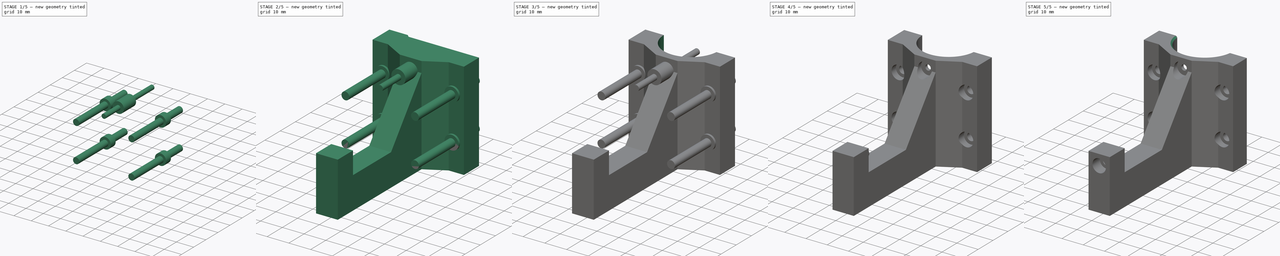
[diagram: build sequence overview — one tinted view per stage of 5, left to right]
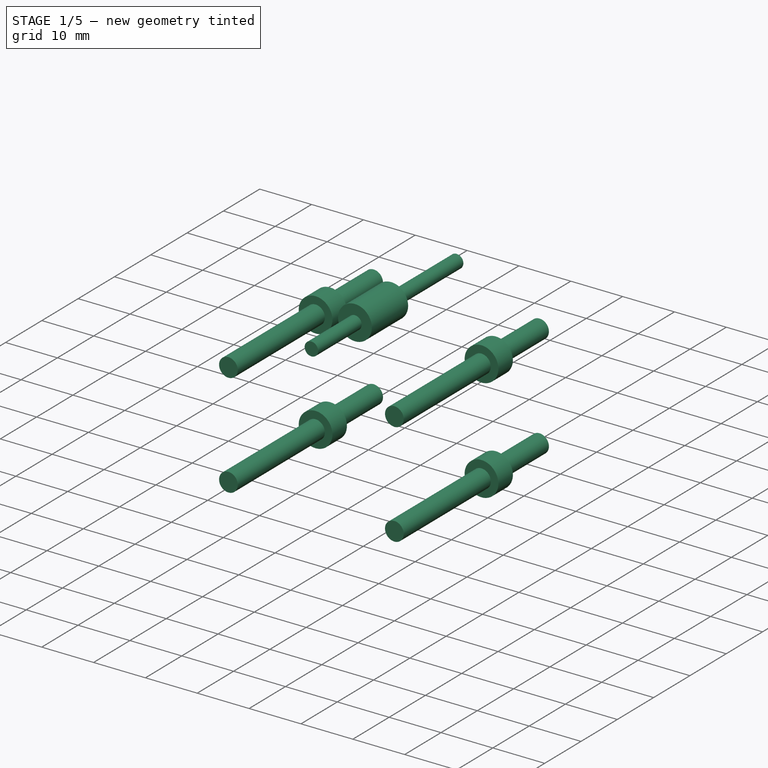
[diagram: stage 1 of 5 — iso view after this stage's code; geometry added in this stage tinted green]
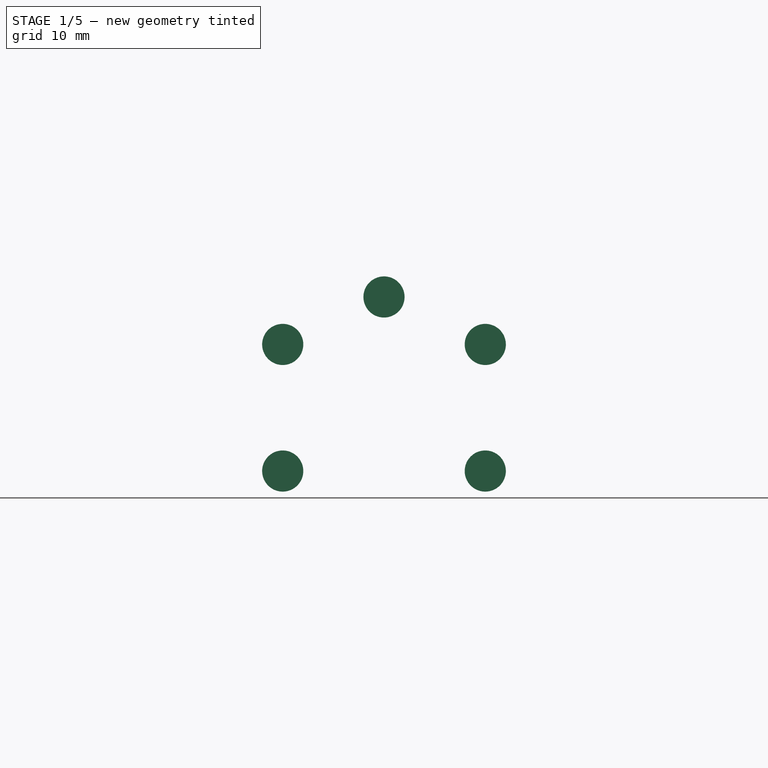
[diagram: stage 1 of 5 — front view after this stage's code; geometry added in this stage tinted green]
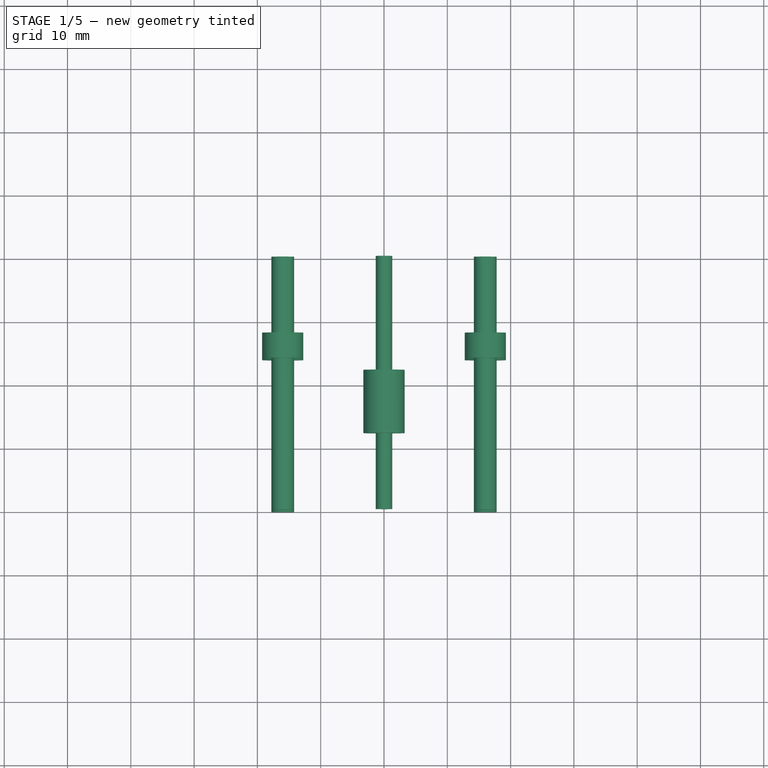
[diagram: stage 1 of 5 — top view after this stage's code; geometry added in this stage tinted green]
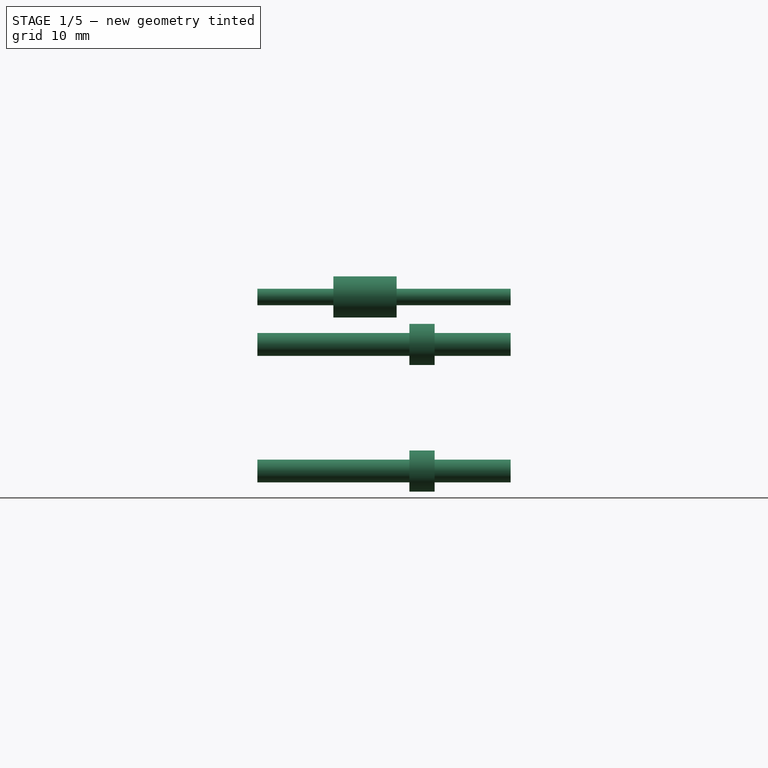
[diagram: stage 1 of 5 — right view after this stage's code; geometry added in this stage tinted green]
FCSTD DOCUMENT  (FreeCAD 0.16R6698 (Git))
Label: body-tube-leg
License: All rights reserved
LicenseURL: http://en.wikipedia.org/wiki/All_rights_reserved
objects: Sketcher::SketchObject×8, Part::Extrusion×8, Part::MultiFuse×3, Part::Cut×3, Part::Chamfer×1
note: 23 computed .brp shape members not serialized (recipe doc carries the construction recipe); baked Part::Feature solids carry a one-line shape summary decoded from their .brp

FEATURE [Sketcher::SketchObject] Sketch005
  Placement = pos=(0,0,0) rot=(1,0,0;1.5708rad)
  sketch-geometry (9):
    g0: LineSegment [constr] StartX=-16 StartY=10 StartZ=0 EndX=16 EndY=10 EndZ=0
    g1: LineSegment [constr] StartX=16 StartY=10 StartZ=0 EndX=16 EndY=-10 EndZ=0
    g2: LineSegment [constr] StartX=16 StartY=-10 StartZ=0 EndX=-16 EndY=-10 EndZ=0
    g3: LineSegment [constr] StartX=-16 StartY=-10 StartZ=0 EndX=-16 EndY=10 EndZ=0
    g4: Circle CenterX=-16 CenterY=10 CenterZ=0 NormalX=0 NormalY=0 NormalZ=1 Radius=1.8
    g5: Circle CenterX=16 CenterY=10 CenterZ=0 NormalX=0 NormalY=0 NormalZ=1 Radius=1.8
    g6: Circle CenterX=16 CenterY=-10 CenterZ=0 NormalX=0 NormalY=0 NormalZ=1 Radius=1.8
    g7: Circle CenterX=-16 CenterY=-10 CenterZ=0 NormalX=0 NormalY=0 NormalZ=1 Radius=1.8
    g8: Circle CenterX=0 CenterY=17.5 CenterZ=0 NormalX=0 NormalY=0 NormalZ=1 Radius=1.3
  constraints (23):
    c: Coincident(g0,g1)
    c: Coincident(g1,g2)
    c: Coincident(g2,g3)
    c: Coincident(g3,g0)
    c: Horizontal(g0)
    c: Horizontal(g2)
    c: Vertical(g1)
    c: Vertical(g3)
    c: DistanceX(g2,g2) = 32
    c: DistanceY(g1,g1) = 20
    c: Symmetric(g2,g1,g-2)
    c: Coincident(g4,g0)
    c: Coincident(g5,g0)
    c: Coincident(g6,g1)
    c: Coincident(g7,g2)
    c: Equal(g5,g4)
    c: Equal(g4,g7)
    c: Equal(g7,g6)
    c: Radius(g4) = 1.8
    c: Symmetric(g0,g1,g-1)
    c: Radius(g8) = 1.3
    c: PointOnObject(g8,g-2)
    c: DistanceY(g0,g8) = 7.5
FEATURE [Sketcher::SketchObject] Sketch006
  Placement = pos=(0,0,0) rot=(1,0,0;1.5708rad)
  sketch-geometry (8):
    g0: LineSegment [constr] StartX=-16 StartY=10 StartZ=0 EndX=16 EndY=10 EndZ=0
    g1: LineSegment [constr] StartX=16 StartY=10 StartZ=0 EndX=16 EndY=-10 EndZ=0
    g2: LineSegment [constr] StartX=16 StartY=-10 StartZ=0 EndX=-16 EndY=-10 EndZ=0
    g3: LineSegment [constr] StartX=-16 StartY=-10 StartZ=0 EndX=-16 EndY=10 EndZ=0
    g4: Circle CenterX=-16 CenterY=10 CenterZ=0 NormalX=0 NormalY=0 NormalZ=1 Radius=3.25
    g5: Circle CenterX=16 CenterY=10 CenterZ=0 NormalX=0 NormalY=0 NormalZ=1 Radius=3.25
    g6: Circle CenterX=16 CenterY=-10 CenterZ=0 NormalX=0 NormalY=0 NormalZ=1 Radius=3.25
    g7: Circle CenterX=-16 CenterY=-10 CenterZ=0 NormalX=0 NormalY=0 NormalZ=1 Radius=3.25
  constraints (20):
    c: Coincident(g0,g1)
    c: Coincident(g1,g2)
    c: Coincident(g2,g3)
    c: Coincident(g3,g0)
    c: Horizontal(g0)
    c: Horizontal(g2)
    c: Vertical(g1)
    c: Vertical(g3)
    c: DistanceX(g2,g2) = 32
    c: DistanceY(g1,g1) = 20
    c: Symmetric(g2,g1,g-2)
    c: Coincident(g4,g0)
    c: Coincident(g5,g0)
    c: Coincident(g6,g1)
    c: Coincident(g7,g2)
    c: Equal(g5,g4)
    c: Equal(g4,g7)
    c: Equal(g7,g6)
    c: Radius(g4) = 3.25
    c: Symmetric(g0,g1,g-1)
FEATURE [Part::Extrusion] Extrude008
  Base = -> Sketch005
  Dir = (0,40,0)
  Placement = pos=(0,-20,0) rot=(0,0,1;0rad)
  Solid = true
FEATURE [Part::Extrusion] Extrude009
  Base = -> Sketch006
  Dir = (0,-4,0)
  Placement = pos=(0,8,0) rot=(0,0,1;0rad)
  Solid = true
FEATURE [Sketcher::SketchObject] Sketch019
  Placement = pos=(0,0,0) rot=(1,0,0;1.5708rad)
  sketch-geometry (5):
    g0: LineSegment [constr] StartX=-16 StartY=10 StartZ=0 EndX=16 EndY=10 EndZ=0
    g1: LineSegment [constr] StartX=16 StartY=10 StartZ=0 EndX=16 EndY=-10 EndZ=0
    g2: LineSegment [constr] StartX=16 StartY=-10 StartZ=0 EndX=-16 EndY=-10 EndZ=0
    g3: LineSegment [constr] StartX=-16 StartY=-10 StartZ=0 EndX=-16 EndY=10 EndZ=0
    g4: Circle CenterX=0 CenterY=17.5 CenterZ=0 NormalX=0 NormalY=0 NormalZ=1 Radius=3.25
  constraints (15):
    c: Coincident(g0,g1)
    c: Coincident(g1,g2)
    c: Coincident(g2,g3)
    c: Coincident(g3,g0)
    c: Horizontal(g0)
    c: Horizontal(g2)
    c: Vertical(g1)
    c: Vertical(g3)
    c: DistanceX(g2,g2) = 32
    c: DistanceY(g1,g1) = 20
    c: Symmetric(g2,g1,g-2)
    c: Symmetric(g0,g1,g-1)
    c: Radius(g4) = 3.25
    c: PointOnObject(g4,g-2)
    c: DistanceY(g0,g4) = 7.5
FEATURE [Part::Extrusion] Extrude022
  Base = -> Sketch019
  Dir = (0,10,0)
  Placement = pos=(0,-8,0) rot=(0,0,1;0rad)
  Solid = true
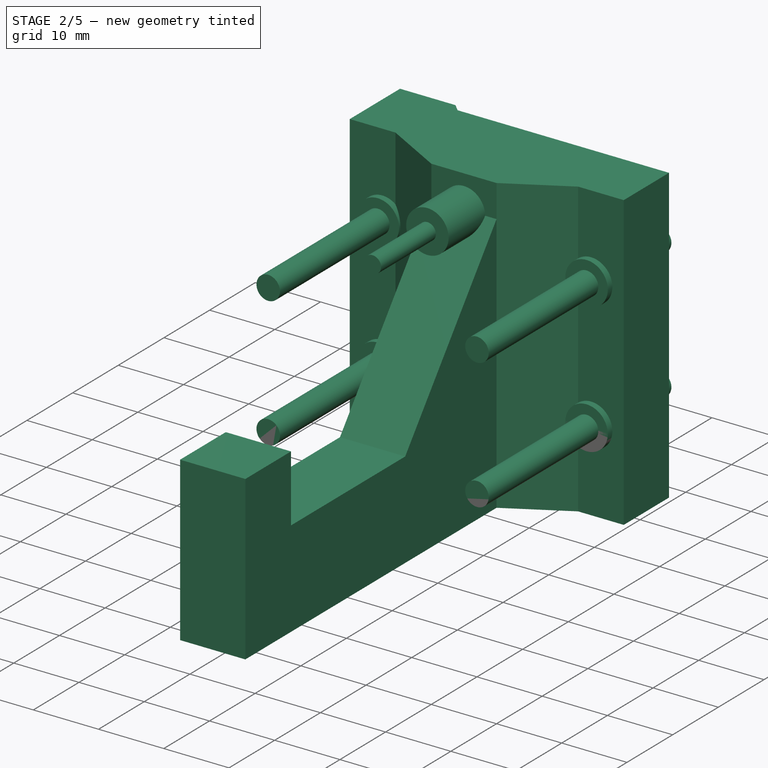
[diagram: stage 2 of 5 — iso view after this stage's code; geometry added in this stage tinted green]
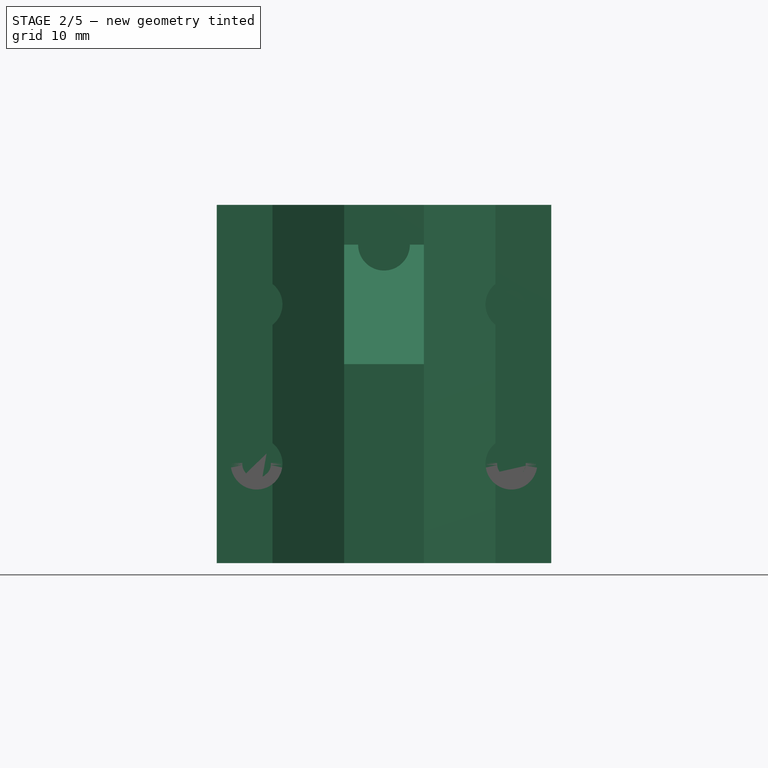
[diagram: stage 2 of 5 — front view after this stage's code; geometry added in this stage tinted green]
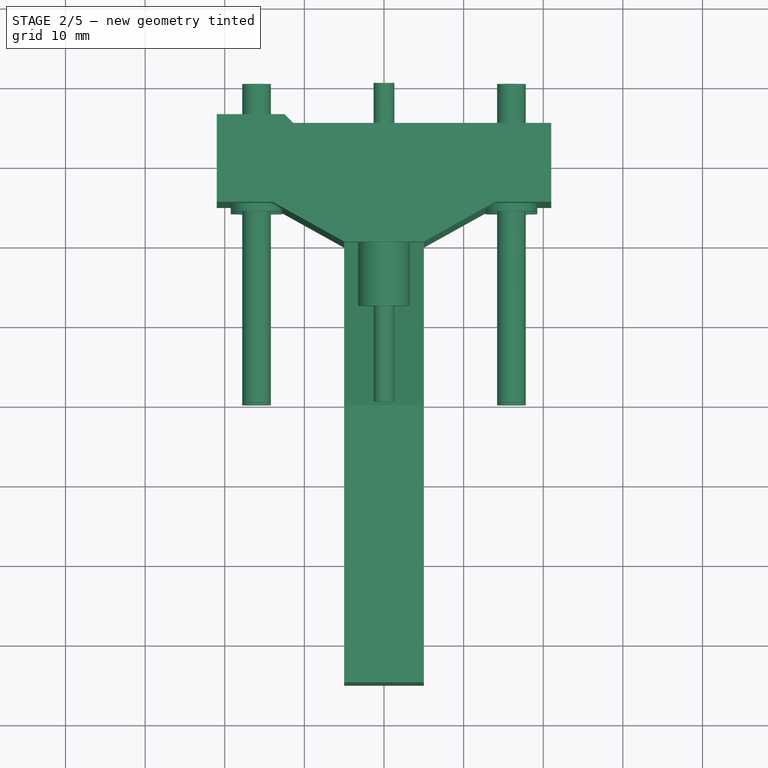
[diagram: stage 2 of 5 — top view after this stage's code; geometry added in this stage tinted green]
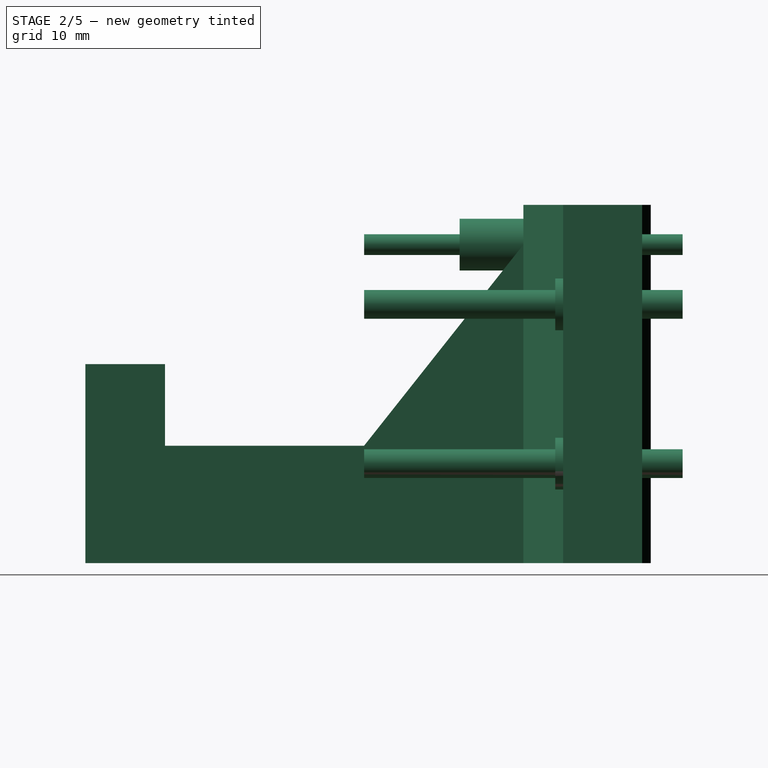
[diagram: stage 2 of 5 — right view after this stage's code; geometry added in this stage tinted green]
FEATURE [Sketcher::SketchObject] Sketch003
  sketch-geometry (13):
    g0: LineSegment StartX=21 StartY=14.9106 StartZ=0 EndX=21 EndY=5 EndZ=0
    g1: ArcOfCircle [constr] CenterX=0 CenterY=16 CenterZ=0 NormalX=0 NormalY=0 NormalZ=1 Radius=12.5 StartAngle=3.14159 EndAngle=6.19592
    g2: LineSegment StartX=-21 StartY=16 StartZ=0 EndX=-12.5 EndY=16 EndZ=0
    g3: LineSegment StartX=12.4524 StartY=14.9106 StartZ=0 EndX=21 EndY=14.9106 EndZ=0
    g4: LineSegment StartX=-5 StartY=0 StartZ=0 EndX=-14 EndY=5 EndZ=0
    g5: LineSegment StartX=-14 StartY=5 StartZ=0 EndX=-21 EndY=5 EndZ=0
    g6: LineSegment StartX=-21 StartY=5 StartZ=0 EndX=-21 EndY=16 EndZ=0
    g7: LineSegment StartX=-5 StartY=0 StartZ=0 EndX=5 EndY=0 EndZ=0
    g8: LineSegment StartX=5 StartY=0 StartZ=0 EndX=14 EndY=5 EndZ=0
    g9: LineSegment StartX=14 StartY=5 StartZ=0 EndX=21 EndY=5 EndZ=0
    g10: LineSegment [constr] StartX=-14 StartY=5 StartZ=0 EndX=14 EndY=5 EndZ=0
    g11: LineSegment StartX=12.4524 StartY=14.9106 StartZ=0 EndX=-11.4106 EndY=14.9106 EndZ=0
    g12: LineSegment StartX=-11.4106 StartY=14.9106 StartZ=0 EndX=-12.5 EndY=16 EndZ=0
  constraints (38):
    c: Vertical(g0)
    c: PointOnObject(g4,g-1)
    c: PointOnObject(g1,g-2)
    c: Radius(g1) = 12.5
    c: Angle(g1) = 3.05433
    c: Coincident(g2,g1)
    c: Horizontal(g2)
    c: DistanceY(g4,g2) = 16
    c: Coincident(g3,g1)
    c: Coincident(g3,g0)
    c: Horizontal(g3)
    c: DistanceX(g2,g2) = 8.5
    c: Coincident(g4,g5)
    c: Horizontal(g5)
    c: Coincident(g5,g6)
    c: Vertical(g6)
    c: Coincident(g6,g2)
    c: Coincident(g4,g7)
    c: Horizontal(g7)
    c: Coincident(g7,g8)
    c: Coincident(g8,g9)
    c: Horizontal(g9)
    c: Coincident(g9,g0)
    c: Symmetric(g4,g7,g-1)
    c: Equal(g4,g8)
    c: Equal(g5,g9)
    c: DistanceX(g7,g7) = 10
    c: DistanceY(g6,g6) = 11
    c: DistanceX(g5,g5) = 7
    c: Coincident(g10,g4)
    c: Coincident(g10,g8)
    c: Horizontal(g10)
    c: PointOnObject(g1,g2)
    c: Coincident(g1,g11)
    c: Coincident(g11,g12)
    c: Horizontal(g11)
    c: Coincident(g12,g1)
    c: Angle(g11,g12) = 2.35619
FEATURE [Part::Extrusion] Extrude
  Base = -> Sketch003
  Dir = (0,0,45)
  Solid = true
FEATURE [Sketcher::SketchObject] Sketch
  Placement = pos=(0,0,0) rot=(0.57735,0.57735,0.57735;2.0944rad)
  sketch-geometry (7):
    g0: LineSegment StartX=0 StartY=40 StartZ=0 EndX=0 EndY=0 EndZ=0
    g1: LineSegment StartX=0 StartY=0 StartZ=0 EndX=-55 EndY=0 EndZ=0
    g2: LineSegment StartX=-55 StartY=0 StartZ=0 EndX=-55 EndY=25 EndZ=0
    g3: LineSegment StartX=-55 StartY=25 StartZ=0 EndX=-45 EndY=25 EndZ=0
    g4: LineSegment StartX=-45 StartY=25 StartZ=0 EndX=-45 EndY=14.75 EndZ=0
    g5: LineSegment StartX=-45 StartY=14.75 StartZ=0 EndX=-20 EndY=14.75 EndZ=0
    g6: LineSegment StartX=-20 StartY=14.75 StartZ=0 EndX=0 EndY=40 EndZ=0
  constraints (20):
    c: Coincident(g0,g1)
    c: Coincident(g1,g2)
    c: Horizontal(g1)
    c: Vertical(g0)
    c: Vertical(g2)
    c: Coincident(g0,g-1)
    c: Horizontal(g3)
    c: Coincident(g3,g4)
    c: Vertical(g4)
    c: DistanceY(g2,g2) = 25
    c: Coincident(g4,g5)
    c: Horizontal(g5)
    c: Coincident(g5,g6)
    c: Coincident(g6,g0)
    c: DistanceY(g0,g0) = 40
    c: DistanceX(g5,g5) = 25
    c: DistanceX(g3,g3) = 10
    c: Coincident(g3,g2)
    c: DistanceX(g5,g0) = 20
    c: DistanceY(g4,g3) = 10.25
FEATURE [Part::Extrusion] Extrude001
  Base = -> Sketch
  Dir = (10,0,0)
  Placement = pos=(-5,0,0) rot=(0,0,1;0rad)
  Solid = true
FEATURE [Part::MultiFuse] Fusion007  label="ScrewHoles"
  Placement = pos=(0,0,22.5) rot=(0,0,1;0rad)
  Shapes = -> [Extrude022,Extrude008,Extrude009]
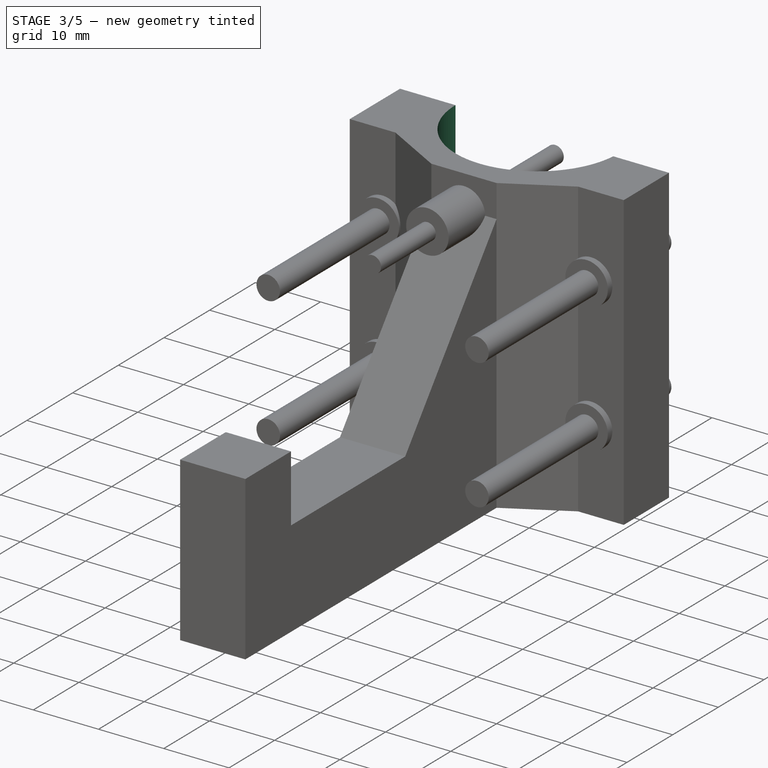
[diagram: stage 3 of 5 — iso view after this stage's code; geometry added in this stage tinted green]
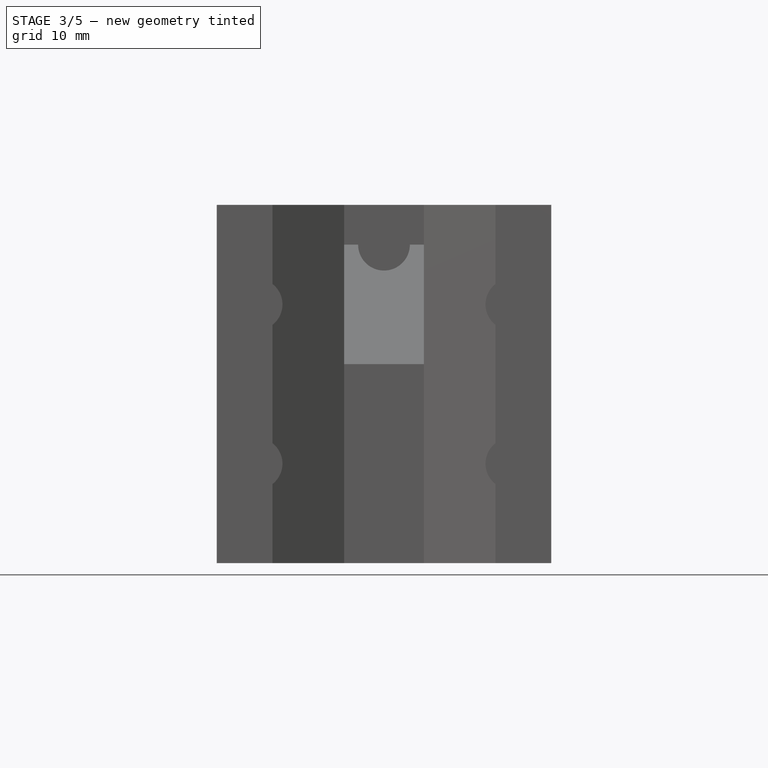
[diagram: stage 3 of 5 — front view after this stage's code; geometry added in this stage tinted green]
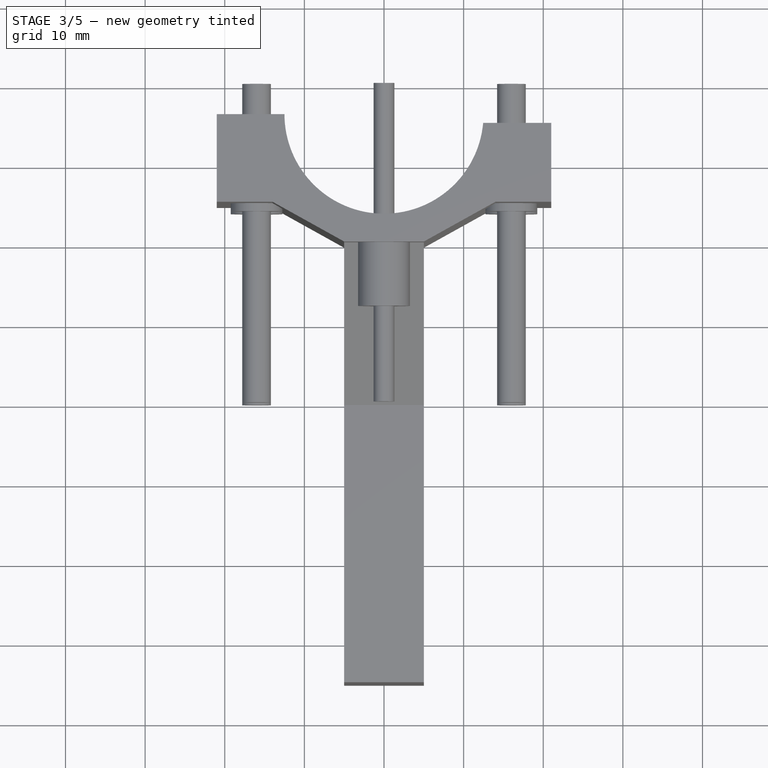
[diagram: stage 3 of 5 — top view after this stage's code; geometry added in this stage tinted green]
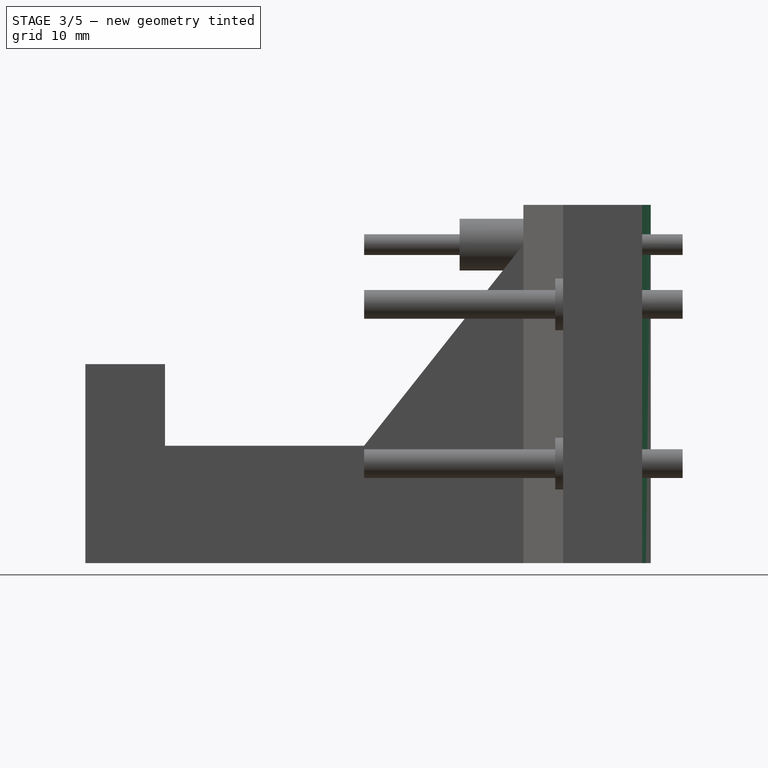
[diagram: stage 3 of 5 — right view after this stage's code; geometry added in this stage tinted green]
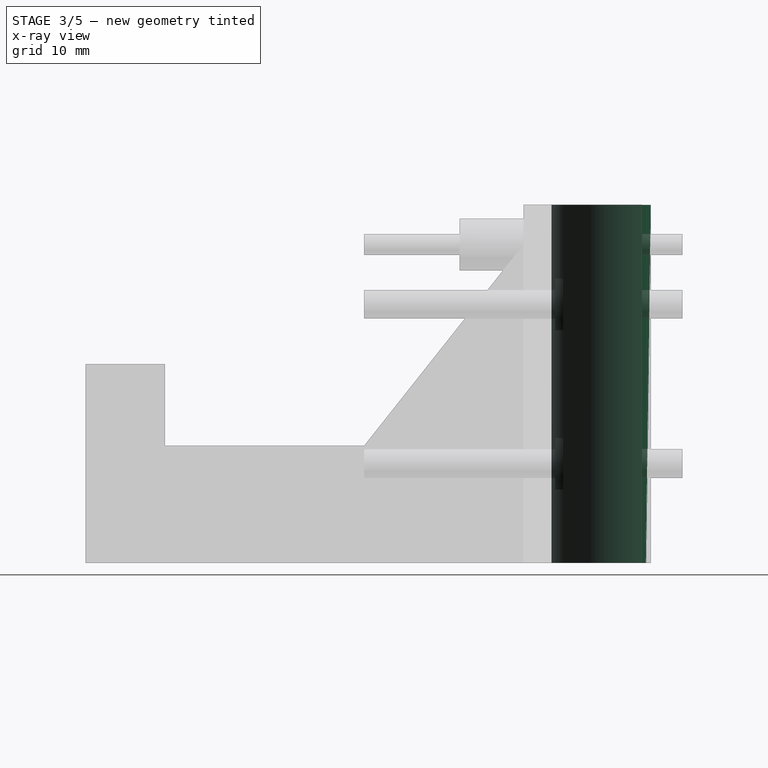
[diagram: stage 3 of 5 — x-ray composite at the right view; earlier geometry ghosted, this stage's added geometry solid]
FEATURE [Sketcher::SketchObject] Sketch004
  Placement = pos=(0,16,0) rot=(0,0,1;0rad)
  sketch-geometry (1):
    g0: Circle CenterX=0 CenterY=0 CenterZ=0 NormalX=0 NormalY=0 NormalZ=1 Radius=12.5
  constraints (2):
    c: Coincident(g0,g-1)
    c: Radius(g0) = 12.5
FEATURE [Part::Extrusion] Extrude007  label="tube"
  Base = -> Sketch004
  Dir = (0,0,60)
  Placement = pos=(0,0,-12.5) rot=(0,0,1;0rad)
  Solid = true
FEATURE [Part::MultiFuse] Fusion
  Shapes = -> [Extrude,Extrude001]
FEATURE [Part::Cut] Cut
  Base = -> Fusion
  Tool = -> Extrude007
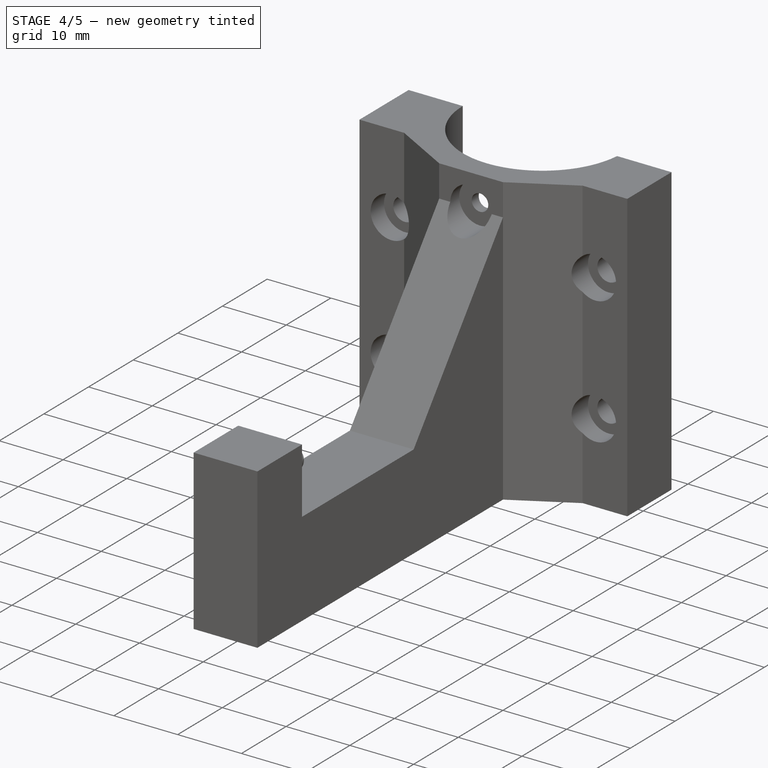
[diagram: stage 4 of 5 — iso view after this stage's code; geometry added in this stage tinted green]
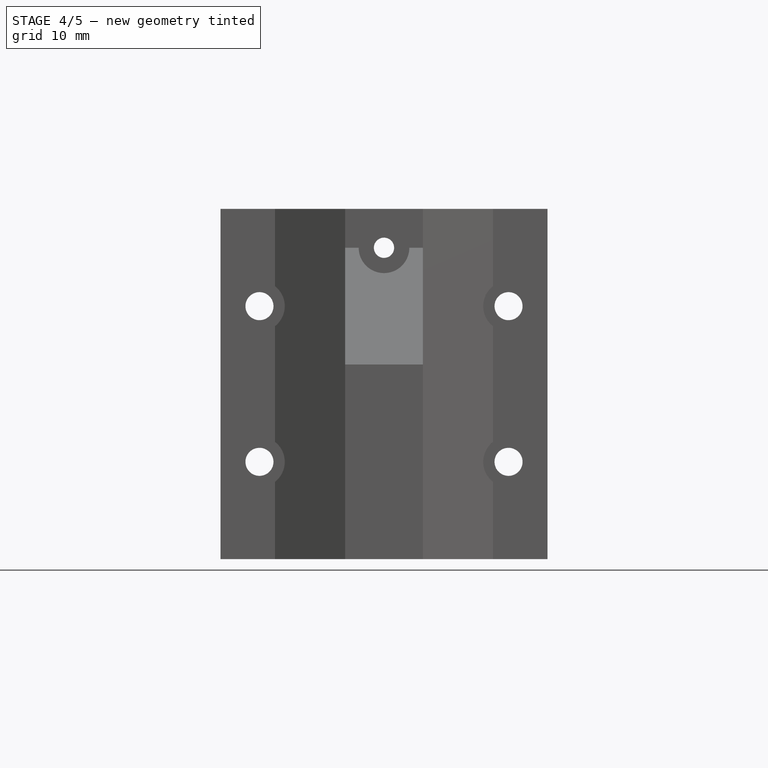
[diagram: stage 4 of 5 — front view after this stage's code; geometry added in this stage tinted green]
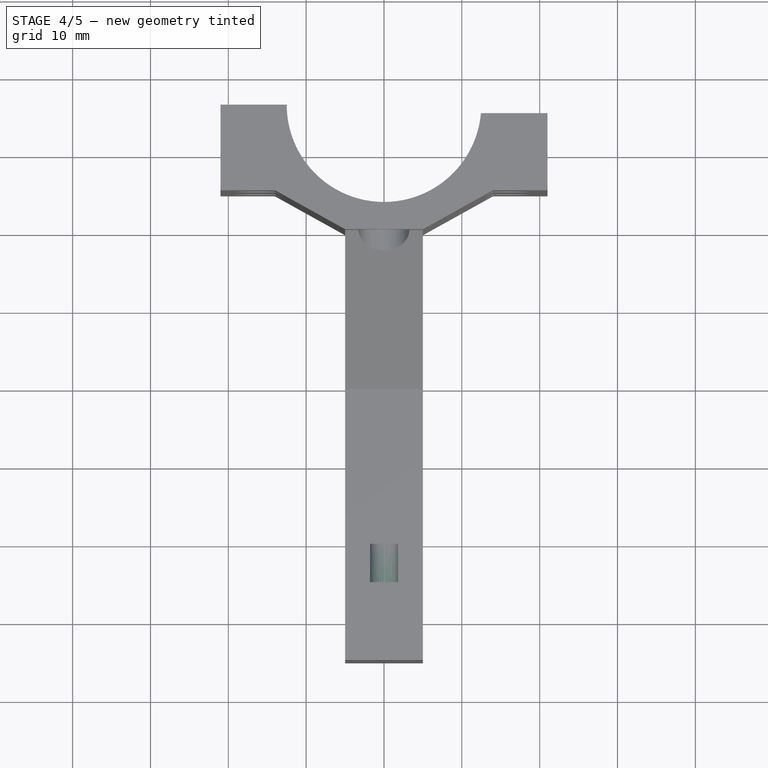
[diagram: stage 4 of 5 — top view after this stage's code; geometry added in this stage tinted green]
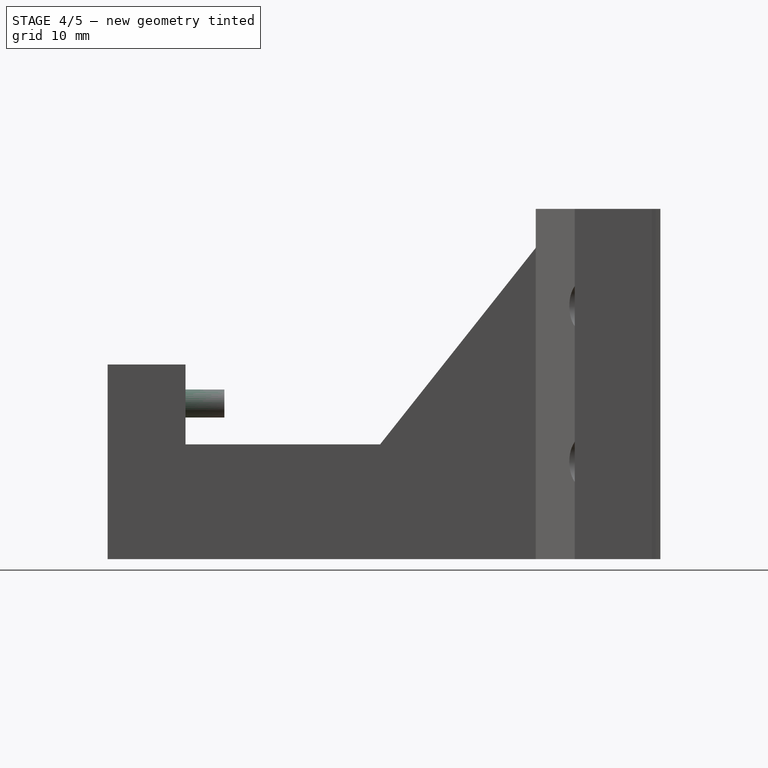
[diagram: stage 4 of 5 — right view after this stage's code; geometry added in this stage tinted green]
FEATURE [Sketcher::SketchObject] Sketch007
  Placement = pos=(0,-55,0) rot=(1,0,0;1.5708rad)
  sketch-geometry (1):
    g0: Circle CenterX=0 CenterY=20 CenterZ=0 NormalX=0 NormalY=0 NormalZ=1 Radius=1.8
  constraints (2):
    c: PointOnObject(g0,g-2)
    c: Radius(g0) = 1.8
FEATURE [Sketcher::SketchObject] Sketch018
  Placement = pos=(0,-55,0) rot=(1,0,0;1.5708rad)
  sketch-geometry (1):
    g0: Circle CenterX=0 CenterY=20 CenterZ=0 NormalX=0 NormalY=0 NormalZ=1 Radius=3.15
  constraints (2):
    c: PointOnObject(g0,g-2)
    c: Radius(g0) = 3.15
FEATURE [Part::Extrusion] Extrude020
  Base = -> Sketch007
  Dir = (0,15,0)
  Solid = true
FEATURE [Part::Extrusion] Extrude021
  Base = -> Sketch018
  Dir = (0,5,0)
  Solid = true
FEATURE [Part::Cut] Cut001
  Base = -> Cut
  Tool = -> Fusion007
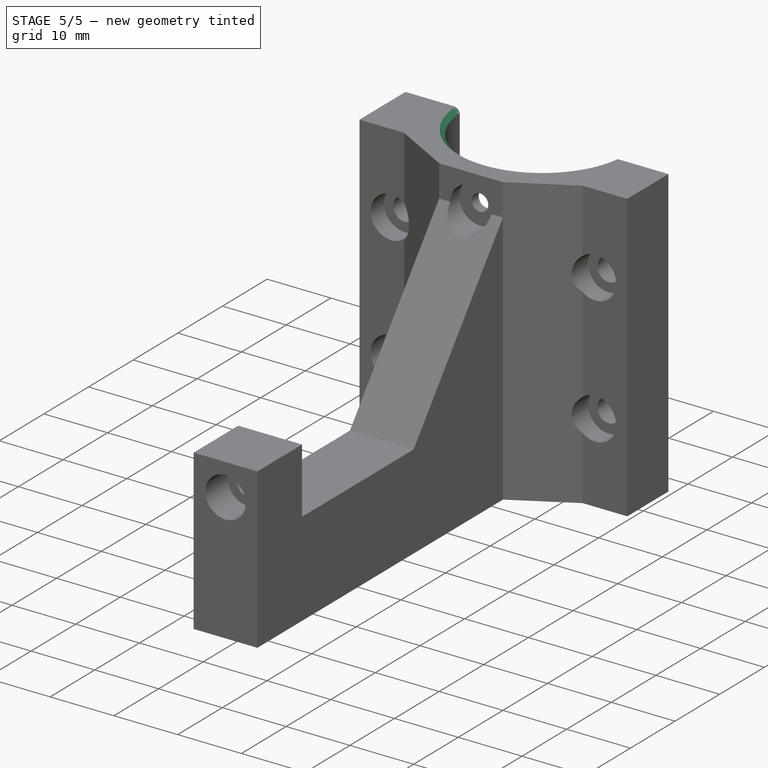
[diagram: stage 5 of 5 — iso view after this stage's code; geometry added in this stage tinted green]
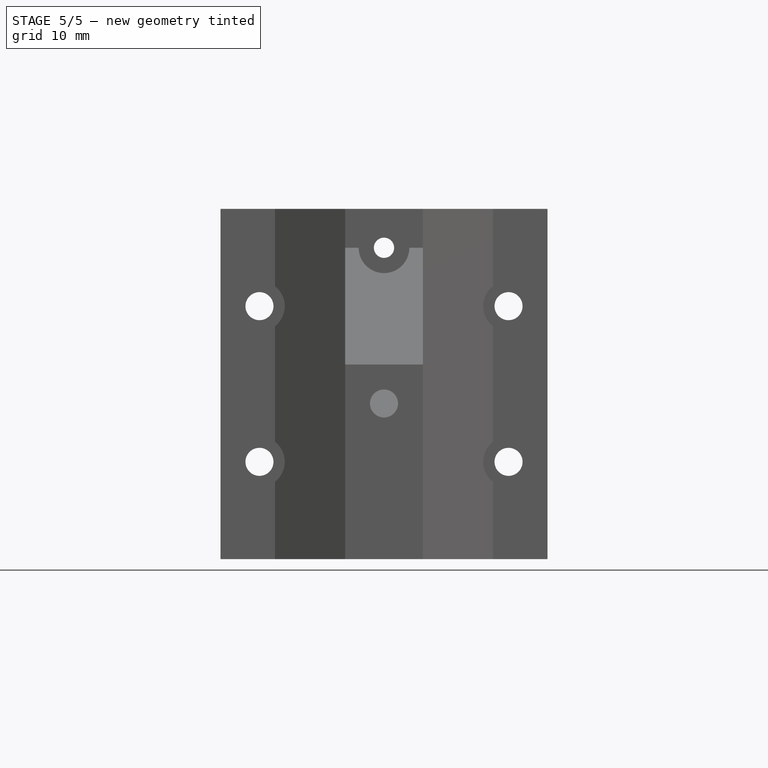
[diagram: stage 5 of 5 — front view after this stage's code; geometry added in this stage tinted green]
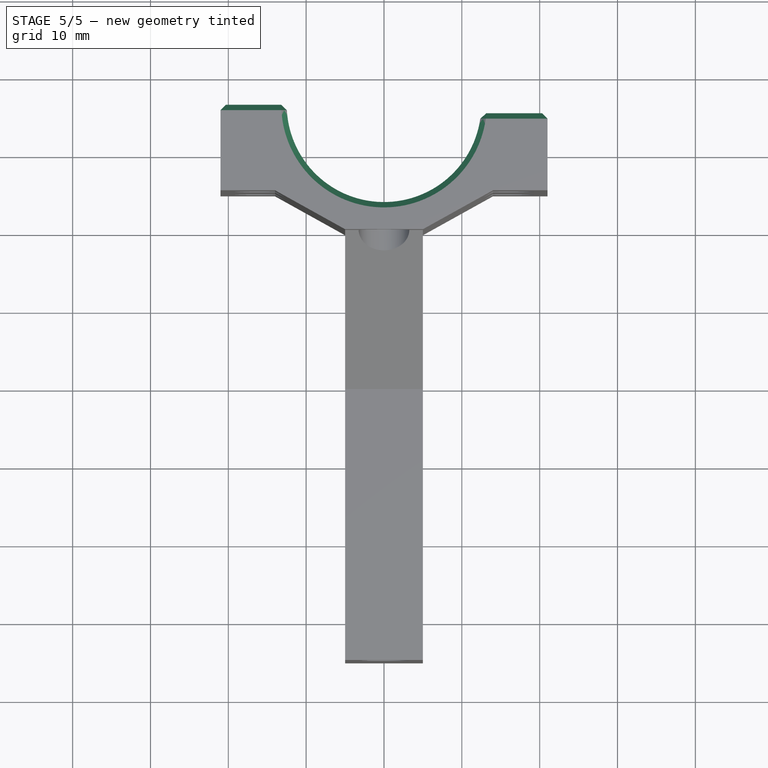
[diagram: stage 5 of 5 — top view after this stage's code; geometry added in this stage tinted green]
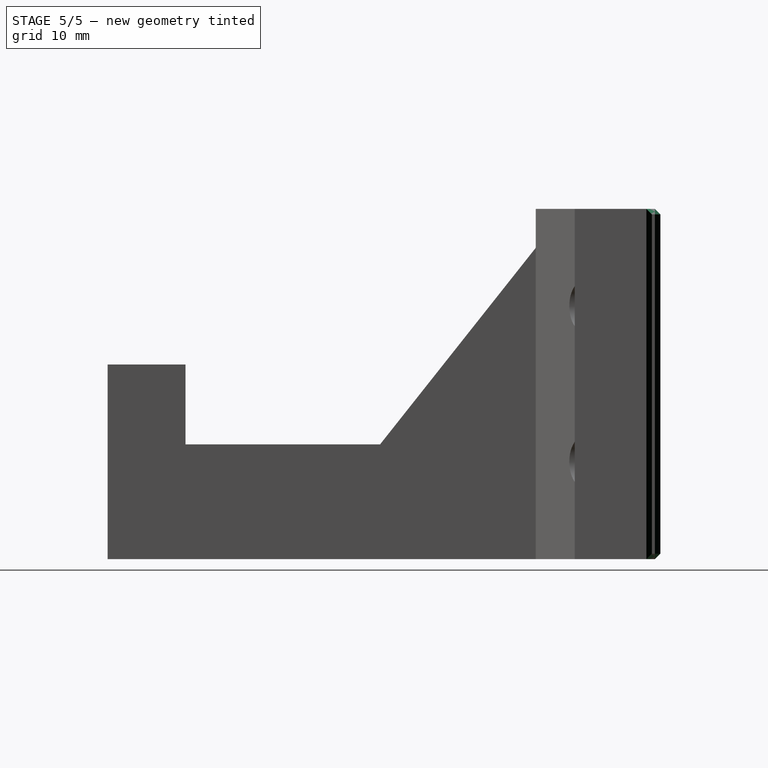
[diagram: stage 5 of 5 — right view after this stage's code; geometry added in this stage tinted green]
FEATURE [Part::MultiFuse] Fusion006  label="BottomScrewHole"
  Shapes = -> [Extrude020,Extrude021]
FEATURE [Part::Cut] Cut002
  Base = -> Cut001
  Tool = -> Fusion006
FEATURE [Part::Chamfer] Chamfer
  Base = -> Cut002
  Edges = 10 edges r=0.7: [Edge1,Edge2,Edge3,Edge4,Edge7,Edge8,Edge9,Edge19,Edge27,Edge33]
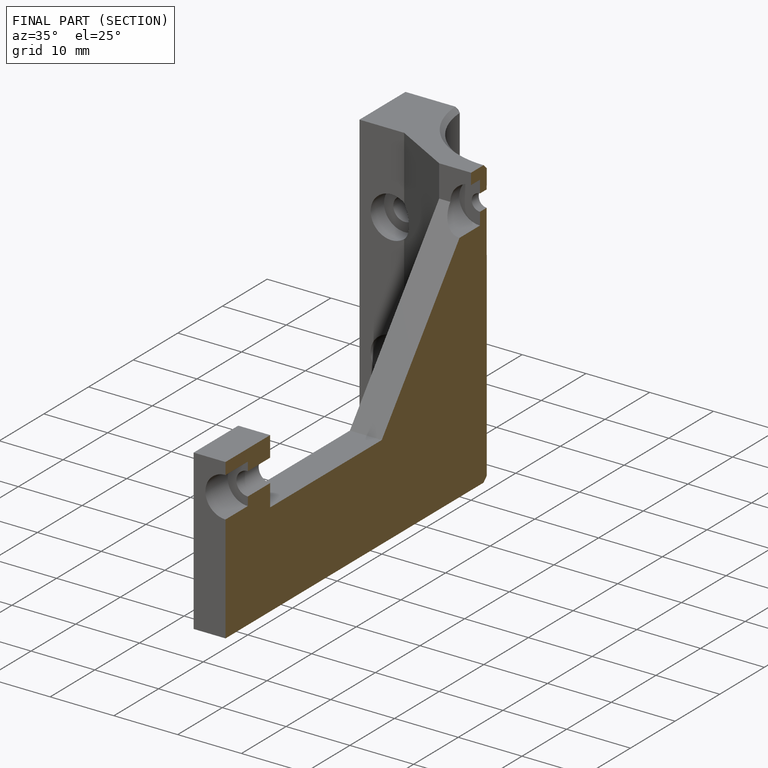
[diagram: finished part — half-section view (interior)]
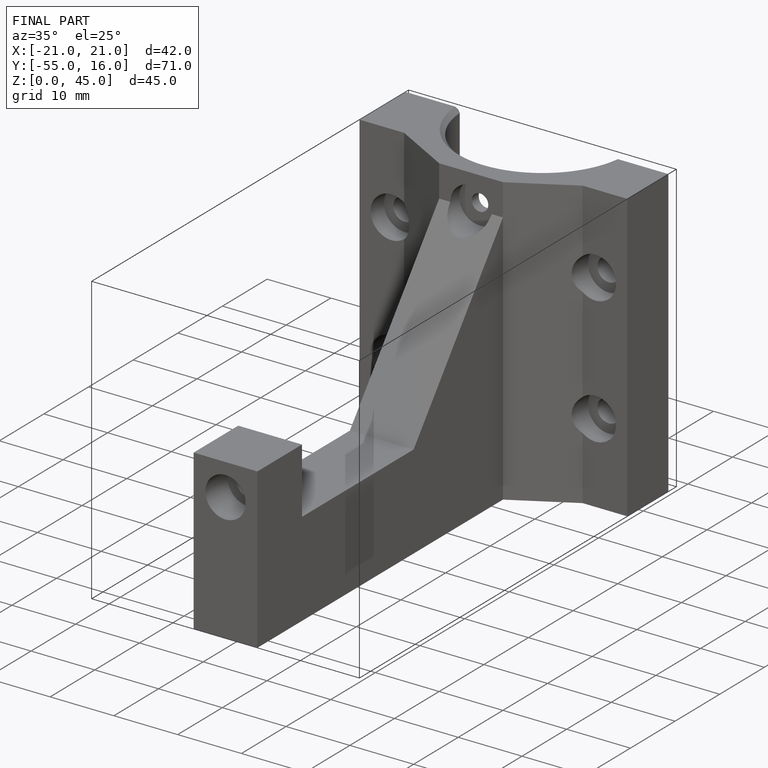
[diagram: finished part — iso view with bounding-box wireframe]
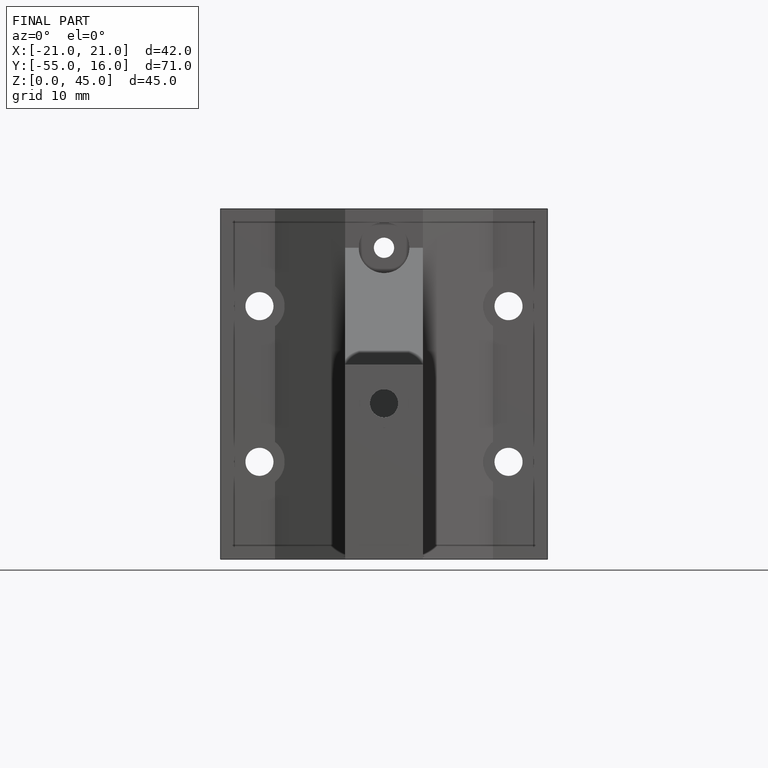
[diagram: finished part — front view with bounding-box wireframe]
